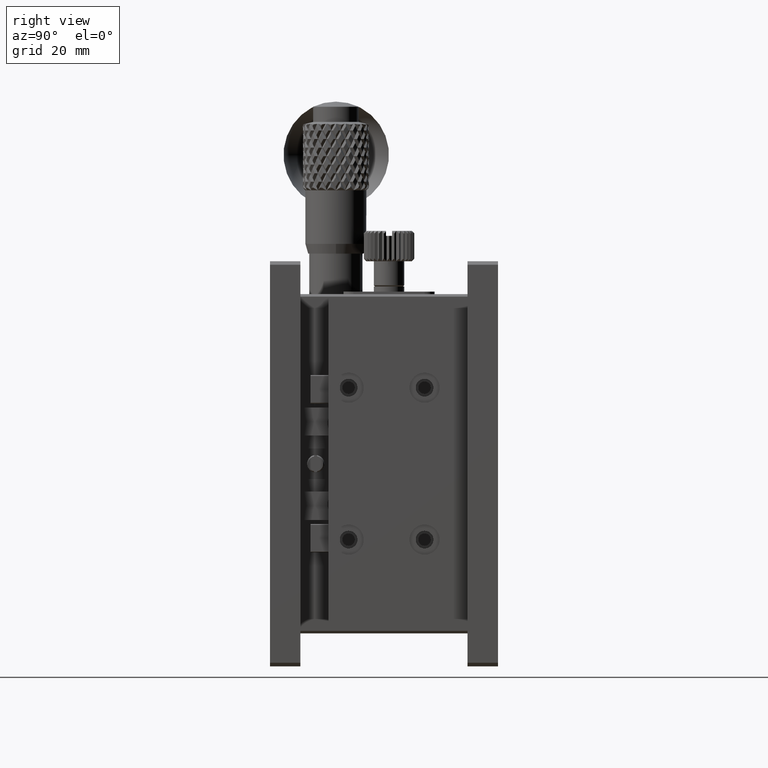
[diagram: clean part render]
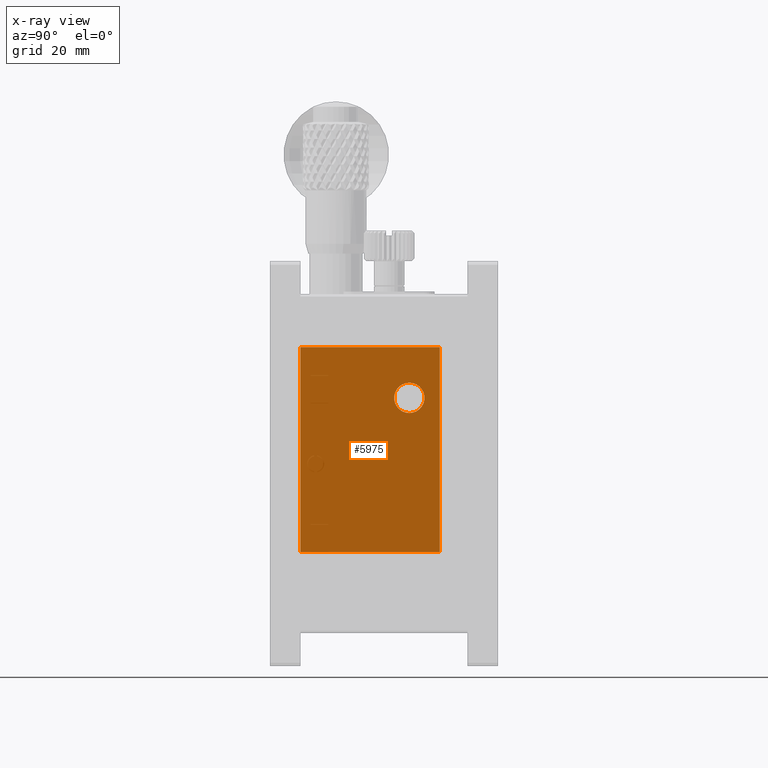
[diagram: x-ray — body ghosted, one internal face saturated and labeled with its STEP entity id]
A machine part, right view, then the same camera in x-ray: the body is ghosted and one INTERNAL B-rep face — a face not visible from any outside direction — is saturated and labeled: STEP entity #5975.
In plain terms, the highlighted planar face has unit normal (1, 0, 0).
Its self-contained STEP definition (entity closure, byte-faithful):
#50 = ORIENTED_EDGE ( 'NONE', *, *, #35628, .T. ) ;
#1367 = VECTOR ( 'NONE', #30673, 1000.000000000000000 ) ;
#4454 = VERTEX_POINT ( 'NONE', #21010 ) ;
#4552 = EDGE_CURVE ( 'NONE', #25439, #66887, #9694, .T. ) ;
#5406 = VECTOR ( 'NONE', #61295, 1000.000000000000000 ) ;
#5975 = ADVANCED_FACE ( 'NONE', ( #8313, #44496 ), #13691, .T. ) ;
#5994 = CARTESIAN_POINT ( 'NONE',  ( 33.99999999999999289, 5.999999999999998224, -17.00000000000000000 ) ) ;
#8313 = FACE_OUTER_BOUND ( 'NONE', #25888, .T. ) ;
#9694 = LINE ( 'NONE', #10013, #1367 ) ;
#10013 = CARTESIAN_POINT ( 'NONE',  ( 34.00000000000000000, 33.50000000000000000, -57.50000000000000000 ) ) ;
#10523 = AXIS2_PLACEMENT_3D ( 'NONE', #59128, #28061, #49331 ) ;
#13203 = ORIENTED_EDGE ( 'NONE', *, *, #4552, .T. ) ;
#13687 = DIRECTION ( 'NONE',  ( 0.000000000000000000, -1.000000000000000000, -0.000000000000000000 ) ) ;
#13691 = PLANE ( 'NONE',  #61655 ) ;
#14746 = VECTOR ( 'NONE', #66429, 1000.000000000000000 ) ;
#16041 = DIRECTION ( 'NONE',  ( 1.713307136767220055E-16, 0.000000000000000000, -1.000000000000000000 ) ) ;
#16470 = ORIENTED_EDGE ( 'NONE', *, *, #19959, .T. ) ;
#17519 = CARTESIAN_POINT ( 'NONE',  ( 34.00000000000000000, 33.50000000000000000, -57.50000000000000000 ) ) ;
#19777 = CARTESIAN_POINT ( 'NONE',  ( 33.99999999999999289, 33.50000000000000000, -17.00000000000000000 ) ) ;
#19794 = VECTOR ( 'NONE', #13687, 1000.000000000000000 ) ;
#19959 = EDGE_CURVE ( 'NONE', #43185, #30047, #55269, .T. ) ;
#21010 = CARTESIAN_POINT ( 'NONE',  ( 34.00000000000000000, 27.50000000000000000, -30.00000000000000000 ) ) ;
#25439 = VERTEX_POINT ( 'NONE', #48116 ) ;
#25827 = CARTESIAN_POINT ( 'NONE',  ( 34.00000000000000000, 33.50000000000000000, 0.000000000000000000 ) ) ;
#25888 = EDGE_LOOP ( 'NONE', ( #29612, #16470, #50, #13203 ) ) ;
#28061 = DIRECTION ( 'NONE',  ( -1.000000000000000000, -0.000000000000000000, -0.000000000000000000 ) ) ;
#28421 = ORIENTED_EDGE ( 'NONE', *, *, #54944, .T. ) ;
#28961 = CIRCLE ( 'NONE', #10523, 2.999999999999999112 ) ;
#29612 = ORIENTED_EDGE ( 'NONE', *, *, #39384, .F. ) ;
#30047 = VERTEX_POINT ( 'NONE', #5994 ) ;
#30316 = CARTESIAN_POINT ( 'NONE',  ( 34.00000000000000000, 5.999999999999998224, -57.50000000000000000 ) ) ;
#30673 = DIRECTION ( 'NONE',  ( -0.000000000000000000, 1.000000000000000000, 0.000000000000000000 ) ) ;
#35628 = EDGE_CURVE ( 'NONE', #30047, #25439, #64757, .T. ) ;
#39384 = EDGE_CURVE ( 'NONE', #43185, #66887, #55569, .T. ) ;
#43185 = VERTEX_POINT ( 'NONE', #52472 ) ;
#44328 = EDGE_LOOP ( 'NONE', ( #28421 ) ) ;
#44496 = FACE_BOUND ( 'NONE', #44328, .T. ) ;
#46819 = DIRECTION ( 'NONE',  ( 1.000000000000000000, 0.000000000000000000, 1.713307136767220055E-16 ) ) ;
#48116 = CARTESIAN_POINT ( 'NONE',  ( 34.00000000000000000, 5.999999999999998224, -57.50000000000000000 ) ) ;
#49331 = DIRECTION ( 'NONE',  ( 0.000000000000000000, 0.000000000000000000, -1.000000000000000000 ) ) ;
#52193 = CARTESIAN_POINT ( 'NONE',  ( 34.00000000000000000, 33.50000000000000000, -57.50000000000000000 ) ) ;
#52472 = CARTESIAN_POINT ( 'NONE',  ( 34.00000000000000000, 33.50000000000000000, -17.00000000000000000 ) ) ;
#54944 = EDGE_CURVE ( 'NONE', #4454, #4454, #28961, .T. ) ;
#55269 = LINE ( 'NONE', #19777, #19794 ) ;
#55569 = LINE ( 'NONE', #25827, #5406 ) ;
#59128 = CARTESIAN_POINT ( 'NONE',  ( 34.00000000000000000, 27.50000000000000000, -27.00000000000000000 ) ) ;
#61295 = DIRECTION ( 'NONE',  ( -0.000000000000000000, 0.000000000000000000, -1.000000000000000000 ) ) ;
#61655 = AXIS2_PLACEMENT_3D ( 'NONE', #52193, #46819, #16041 ) ;
#64757 = LINE ( 'NONE', #30316, #14746 ) ;
#66429 = DIRECTION ( 'NONE',  ( 1.713307136767220055E-16, 0.000000000000000000, -1.000000000000000000 ) ) ;
#66887 = VERTEX_POINT ( 'NONE', #17519 ) ;